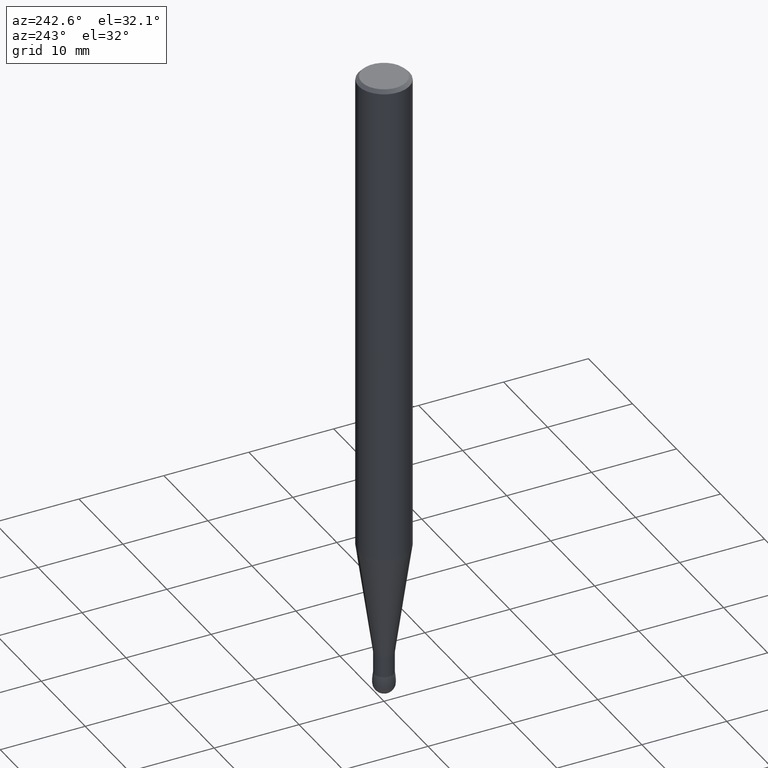
[diagram: clean part render]
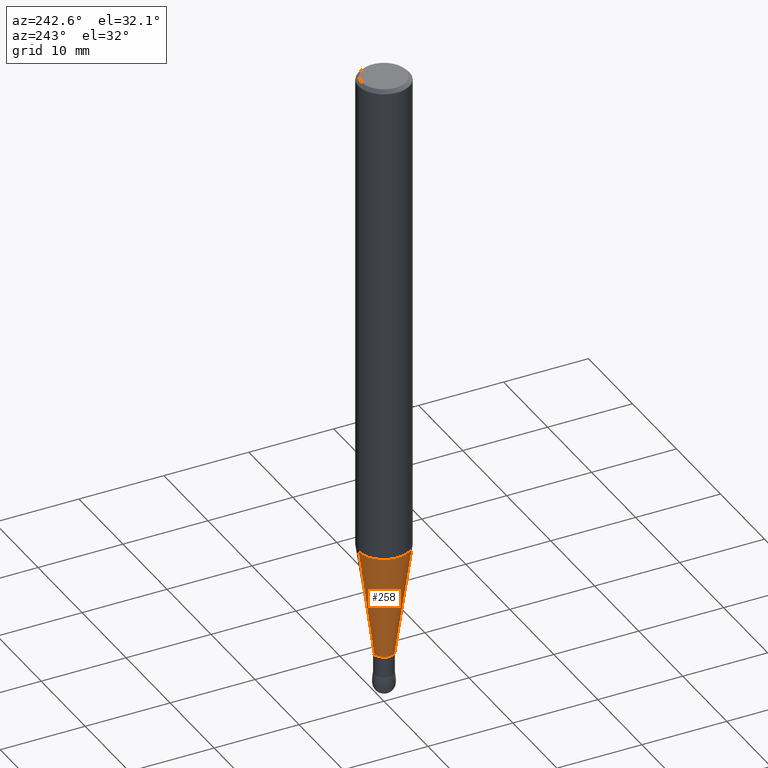
[diagram: same view with one face highlighted and labeled with its STEP entity id]
A machine part, auxiliary view. The second image highlights one B-rep face of the part: STEP entity #258.
In plain terms, the highlighted conical surface has half-angle 8 deg.
Its self-contained STEP definition (entity closure, byte-faithful):
#2 = DIRECTION ( 'NONE',  ( -9.718405697420262401E-16, -0.1391731009600623015, 0.9902680687415706950 ) ) ;
#4 = FACE_OUTER_BOUND ( 'NONE', #248, .T. ) ;
#19 = CARTESIAN_POINT ( 'NONE',  ( -5.694606063652534434E-16, -0.04500000000001029565, -2.795300000000000118 ) ) ;
#39 = AXIS2_PLACEMENT_3D ( 'NONE', #195, #312, #464 ) ;
#42 = CARTESIAN_POINT ( 'NONE',  ( 5.794476010124239052E-16, 0.04499999999999076267, -2.795300000000000118 ) ) ;
#45 = CONICAL_SURFACE ( 'NONE', #302, 0.04500000000000052569, 0.1396263401595466969 ) ;
#80 = CARTESIAN_POINT ( 'NONE',  ( 6.829317653655446739E-29, -9.769048018491451838E-15, -2.795300000000000118 ) ) ;
#93 = CARTESIAN_POINT ( 'NONE',  ( 8.391509709327309522E-16, 0.1180999999999916700, -2.275166473293722458 ) ) ;
#98 = ORIENTED_EDGE ( 'NONE', *, *, #244, .F. ) ;
#106 = VECTOR ( 'NONE', #206, 39.37007874015748143 ) ;
#114 = DIRECTION ( 'NONE',  ( -2.443143009213839704E-29, 3.494812012482185664E-15, 1.000000000000000000 ) ) ;
#149 = CIRCLE ( 'NONE', #262, 0.04500000000000052569 ) ;
#175 = ORIENTED_EDGE ( 'NONE', *, *, #333, .T. ) ;
#195 = CARTESIAN_POINT ( 'NONE',  ( 5.558557064025262488E-29, -7.951279121263629209E-15, -2.275166473293722014 ) ) ;
#197 = VECTOR ( 'NONE', #2, 39.37007874015748854 ) ;
#206 = DIRECTION ( 'NONE',  ( 9.888843590037931308E-16, 0.1391731009600692404, 0.9902680687415698069 ) ) ;
#238 = VERTEX_POINT ( 'NONE', #340 ) ;
#244 = EDGE_CURVE ( 'NONE', #418, #282, #149, .T. ) ;
#245 = ORIENTED_EDGE ( 'NONE', *, *, #309, .T. ) ;
#247 = LINE ( 'NONE', #283, #106 ) ;
#248 = EDGE_LOOP ( 'NONE', ( #384, #98, #245, #175 ) ) ;
#258 = ADVANCED_FACE ( 'NONE', ( #4 ), #45, .T. ) ;
#262 = AXIS2_PLACEMENT_3D ( 'NONE', #80, #458, #381 ) ;
#282 = VERTEX_POINT ( 'NONE', #42 ) ;
#283 = CARTESIAN_POINT ( 'NONE',  ( 3.197442310921170554E-16, 0.04499999999999076267, -2.795300000000000118 ) ) ;
#287 = CIRCLE ( 'NONE', #39, 0.1180999999999996636 ) ;
#302 = AXIS2_PLACEMENT_3D ( 'NONE', #303, #114, #493 ) ;
#303 = CARTESIAN_POINT ( 'NONE',  ( 6.829317653655446739E-29, -9.769048018491451838E-15, -2.795300000000000118 ) ) ;
#309 = EDGE_CURVE ( 'NONE', #418, #238, #420, .T. ) ;
#312 = DIRECTION ( 'NONE',  ( 2.443143009213839704E-29, -3.494812012482185664E-15, -1.000000000000000000 ) ) ;
#333 = EDGE_CURVE ( 'NONE', #238, #398, #287, .T. ) ;
#340 = CARTESIAN_POINT ( 'NONE',  ( -8.246878922346900841E-16, -0.1181000000000076156, -2.275166473293721570 ) ) ;
#349 = CARTESIAN_POINT ( 'NONE',  ( -3.142333204958173450E-16, -0.04500000000001029565, -2.795300000000000118 ) ) ;
#381 = DIRECTION ( 'NONE',  ( 6.982962677686265922E-15, 1.000000000000000000, 0.000000000000000000 ) ) ;
#384 = ORIENTED_EDGE ( 'NONE', *, *, #440, .F. ) ;
#398 = VERTEX_POINT ( 'NONE', #93 ) ;
#418 = VERTEX_POINT ( 'NONE', #19 ) ;
#420 = LINE ( 'NONE', #349, #197 ) ;
#440 = EDGE_CURVE ( 'NONE', #282, #398, #247, .T. ) ;
#458 = DIRECTION ( 'NONE',  ( 2.443143009213839704E-29, -3.494812012482185664E-15, -1.000000000000000000 ) ) ;
#464 = DIRECTION ( 'NONE',  ( 6.982962677686265922E-15, 1.000000000000000000, -4.626330217890382747E-15 ) ) ;
#493 = DIRECTION ( 'NONE',  ( -6.982962677686265922E-15, -1.000000000000000000, 0.000000000000000000 ) ) ;